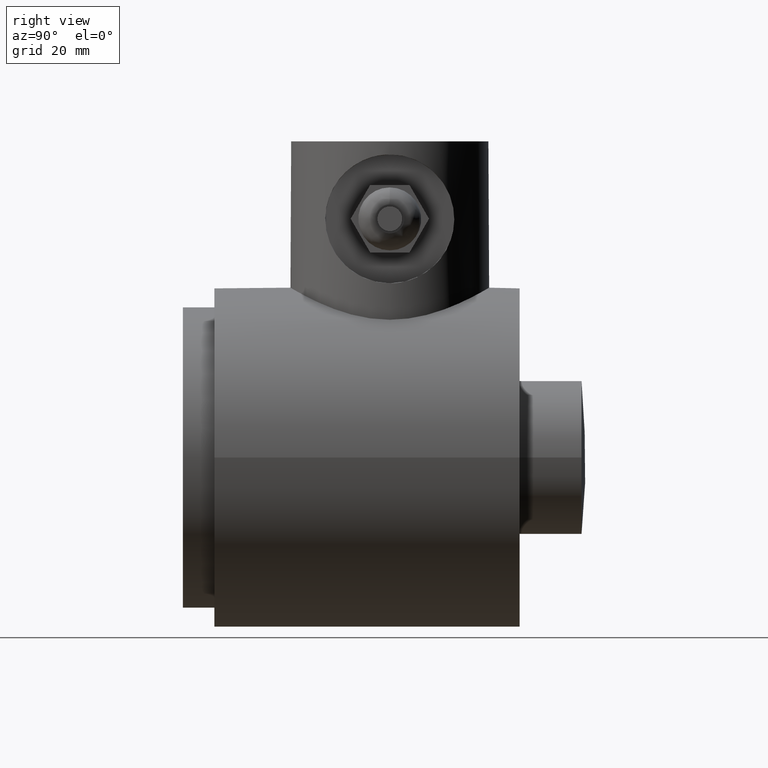
[diagram: clean part render]
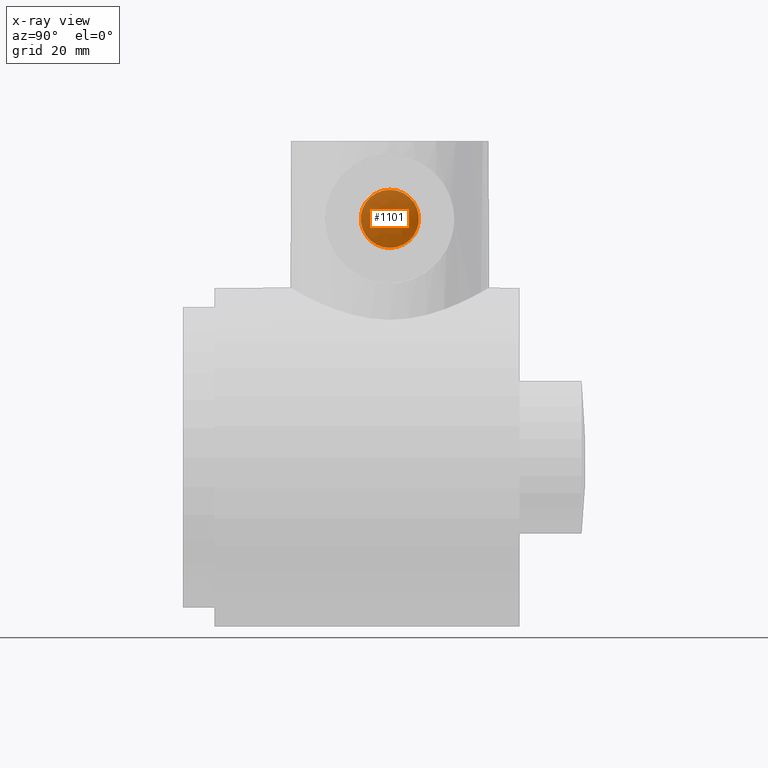
[diagram: x-ray — body ghosted, one internal face saturated and labeled with its STEP entity id]
A machine part, right view, then the same camera in x-ray: the body is ghosted and one INTERNAL B-rep face — a face not visible from any outside direction — is saturated and labeled: STEP entity #1101.
In plain terms, the highlighted planar face has unit normal (-1, 0, 0).
Its self-contained STEP definition (entity closure, byte-faithful):
#102=PLANE('',#1189);
#128=FACE_OUTER_BOUND('',#198,.T.);
#198=EDGE_LOOP('',(#735));
#428=CIRCLE('',#1187,0.236220472440945);
#456=VERTEX_POINT('',#1556);
#566=EDGE_CURVE('',#456,#456,#428,.T.);
#735=ORIENTED_EDGE('',*,*,#566,.T.);
#1101=ADVANCED_FACE('',(#128),#102,.T.);
#1187=AXIS2_PLACEMENT_3D('',#1557,#1288,#1289);
#1189=AXIS2_PLACEMENT_3D('',#1561,#1293,#1294);
#1288=DIRECTION('center_axis',(-1.,0.,0.));
#1289=DIRECTION('ref_axis',(0.,0.,1.));
#1293=DIRECTION('center_axis',(-1.,0.,0.));
#1294=DIRECTION('ref_axis',(0.,0.,1.));
#1556=CARTESIAN_POINT('',(-0.118110236220472,-2.89286645467879E-17,-0.236220472440945));
#1557=CARTESIAN_POINT('Origin',(-0.118110236220472,0.,0.));
#1561=CARTESIAN_POINT('Origin',(-0.118110236220472,0.,0.));